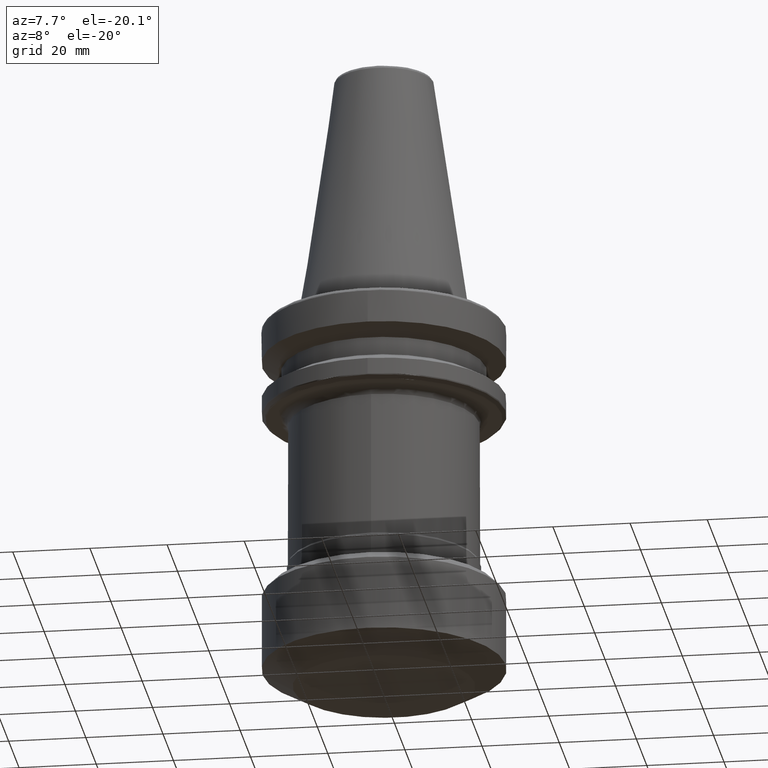
[diagram: clean part render]
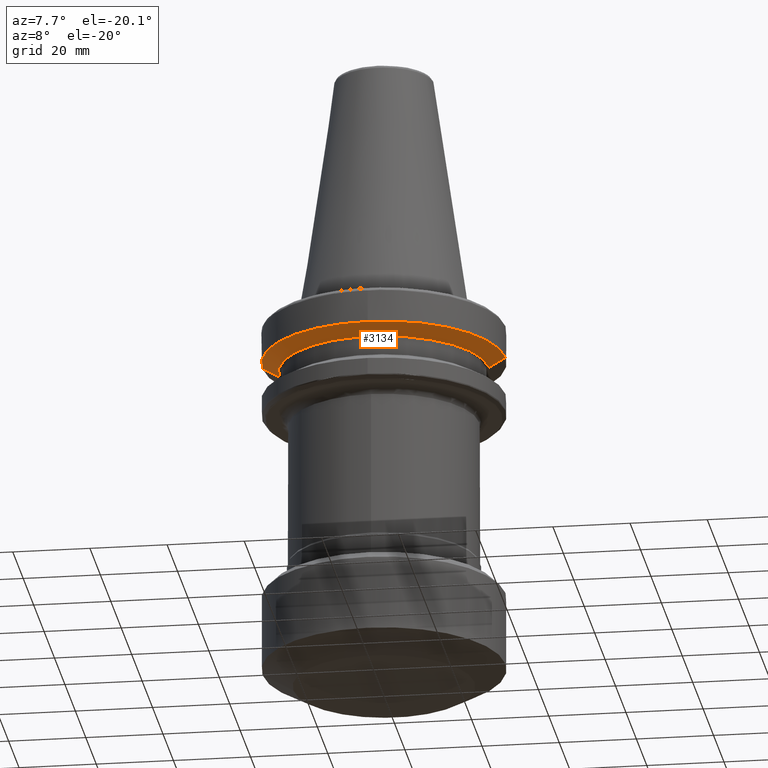
[diagram: same view with one face highlighted and labeled with its STEP entity id]
A machine part, auxiliary view. The second image highlights one B-rep face of the part: STEP entity #3134.
In plain terms, the highlighted conical surface has half-angle 60 deg.
Its self-contained STEP definition (entity closure, byte-faithful):
#2 = VECTOR ( 'NONE', #524, 1000.000000000000000 ) ;
#162 = ORIENTED_EDGE ( 'NONE', *, *, #1074, .F. ) ;
#178 = VERTEX_POINT ( 'NONE', #551 ) ;
#257 = CARTESIAN_POINT ( 'NONE',  ( 31.50000000000453000, 0.0000000000000000000, -11.61635562980707600 ) ) ;
#376 = ORIENTED_EDGE ( 'NONE', *, *, #1137, .T. ) ;
#428 = CIRCLE ( 'NONE', #501, 27.19820176289798800 ) ;
#501 = AXIS2_PLACEMENT_3D ( 'NONE', #2187, #579, #2459 ) ;
#524 = DIRECTION ( 'NONE',  ( -0.8660254037844383700, 1.060575238724906500E-016, 0.5000000000000004400 ) ) ;
#551 = CARTESIAN_POINT ( 'NONE',  ( 0.0000000000000000000, -31.50000000000453000, -11.61635562980707600 ) ) ;
#579 = DIRECTION ( 'NONE',  ( -0.0000000000000000000, -0.0000000000000000000, -1.000000000000000000 ) ) ;
#727 = LINE ( 'NONE', #2922, #2 ) ;
#771 = CONICAL_SURFACE ( 'NONE', #3145, 31.50000000000453000, 1.047197551196597200 ) ;
#900 = DIRECTION ( 'NONE',  ( 1.000000000000000000, 0.0000000000000000000, 0.0000000000000000000 ) ) ;
#942 = CARTESIAN_POINT ( 'NONE',  ( 0.0000000000000000000, 0.0000000000000000000, -11.61635562980707600 ) ) ;
#1074 = EDGE_CURVE ( 'NONE', #1299, #1346, #727, .T. ) ;
#1137 = EDGE_CURVE ( 'NONE', #2848, #1159, #2774, .T. ) ;
#1159 = VERTEX_POINT ( 'NONE', #257 ) ;
#1214 = DIRECTION ( 'NONE',  ( -1.000000000000000000, 0.0000000000000000000, 0.0000000000000000000 ) ) ;
#1289 = AXIS2_PLACEMENT_3D ( 'NONE', #942, #2820, #1214 ) ;
#1299 = VERTEX_POINT ( 'NONE', #2252 ) ;
#1328 = DIRECTION ( 'NONE',  ( 0.8660254037844383700, 0.0000000000000000000, 0.5000000000000004400 ) ) ;
#1346 = VERTEX_POINT ( 'NONE', #2783 ) ;
#1478 = CIRCLE ( 'NONE', #3118, 31.50000000000453000 ) ;
#1534 = CARTESIAN_POINT ( 'NONE',  ( 0.0000000000000000000, 0.0000000000000000000, -11.61635562980707600 ) ) ;
#1568 = CIRCLE ( 'NONE', #1289, 31.50000000000453000 ) ;
#1616 = EDGE_CURVE ( 'NONE', #178, #1346, #1478, .T. ) ;
#1733 = CARTESIAN_POINT ( 'NONE',  ( 0.0000000000000000000, 0.0000000000000000000, -11.61635562980707600 ) ) ;
#1739 = CARTESIAN_POINT ( 'NONE',  ( 27.19820176289798800, 0.0000000000000000000, -14.10000000000000100 ) ) ;
#1807 = DIRECTION ( 'NONE',  ( -1.000000000000000000, 0.0000000000000000000, 0.0000000000000000000 ) ) ;
#2154 = VECTOR ( 'NONE', #1328, 1000.000000000000000 ) ;
#2187 = CARTESIAN_POINT ( 'NONE',  ( 0.0000000000000000000, 0.0000000000000000000, -14.10000000000000100 ) ) ;
#2213 = EDGE_LOOP ( 'NONE', ( #162, #3249, #376, #2973, #2779 ) ) ;
#2252 = CARTESIAN_POINT ( 'NONE',  ( -27.19820176289798800, 3.594228245232203900E-015, -14.10000000000000100 ) ) ;
#2459 = DIRECTION ( 'NONE',  ( -1.000000000000000000, 0.0000000000000000000, 0.0000000000000000000 ) ) ;
#2515 = DIRECTION ( 'NONE',  ( 0.0000000000000000000, 0.0000000000000000000, 1.000000000000000000 ) ) ;
#2663 = CARTESIAN_POINT ( 'NONE',  ( 31.50000000000453000, 0.0000000000000000000, -11.61635562980707600 ) ) ;
#2774 = LINE ( 'NONE', #2663, #2154 ) ;
#2779 = ORIENTED_EDGE ( 'NONE', *, *, #1616, .T. ) ;
#2783 = CARTESIAN_POINT ( 'NONE',  ( -31.50000000000453000, 3.857637417314717300E-015, -11.61635562980707600 ) ) ;
#2820 = DIRECTION ( 'NONE',  ( -0.0000000000000000000, -0.0000000000000000000, -1.000000000000000000 ) ) ;
#2848 = VERTEX_POINT ( 'NONE', #1739 ) ;
#2905 = FACE_OUTER_BOUND ( 'NONE', #2213, .T. ) ;
#2922 = CARTESIAN_POINT ( 'NONE',  ( -31.50000000000453000, 3.857637417314717300E-015, -11.61635562980707600 ) ) ;
#2973 = ORIENTED_EDGE ( 'NONE', *, *, #3201, .T. ) ;
#3118 = AXIS2_PLACEMENT_3D ( 'NONE', #1534, #3401, #1807 ) ;
#3134 = ADVANCED_FACE ( 'NONE', ( #2905 ), #771, .T. ) ;
#3145 = AXIS2_PLACEMENT_3D ( 'NONE', #1733, #2515, #900 ) ;
#3201 = EDGE_CURVE ( 'NONE', #1159, #178, #1568, .T. ) ;
#3249 = ORIENTED_EDGE ( 'NONE', *, *, #3460, .F. ) ;
#3401 = DIRECTION ( 'NONE',  ( -0.0000000000000000000, -0.0000000000000000000, -1.000000000000000000 ) ) ;
#3460 = EDGE_CURVE ( 'NONE', #2848, #1299, #428, .T. ) ;